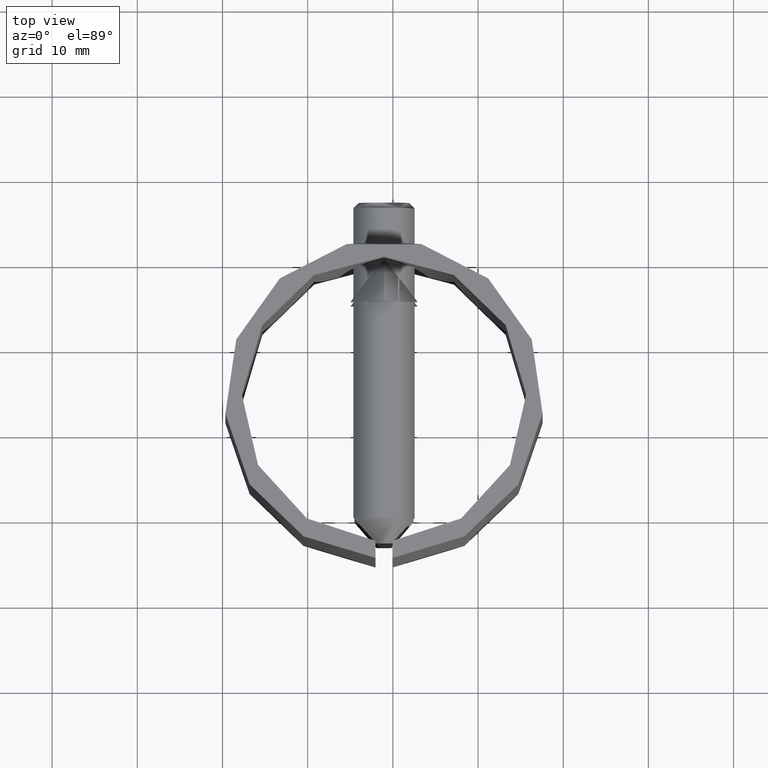
[diagram: clean part render]
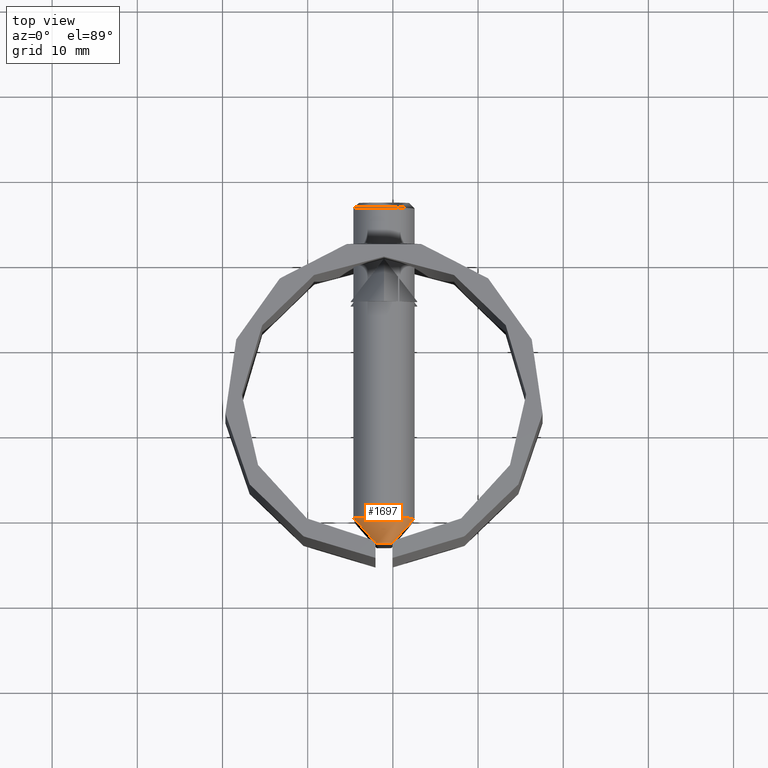
[diagram: same view with one face highlighted and labeled with its STEP entity id]
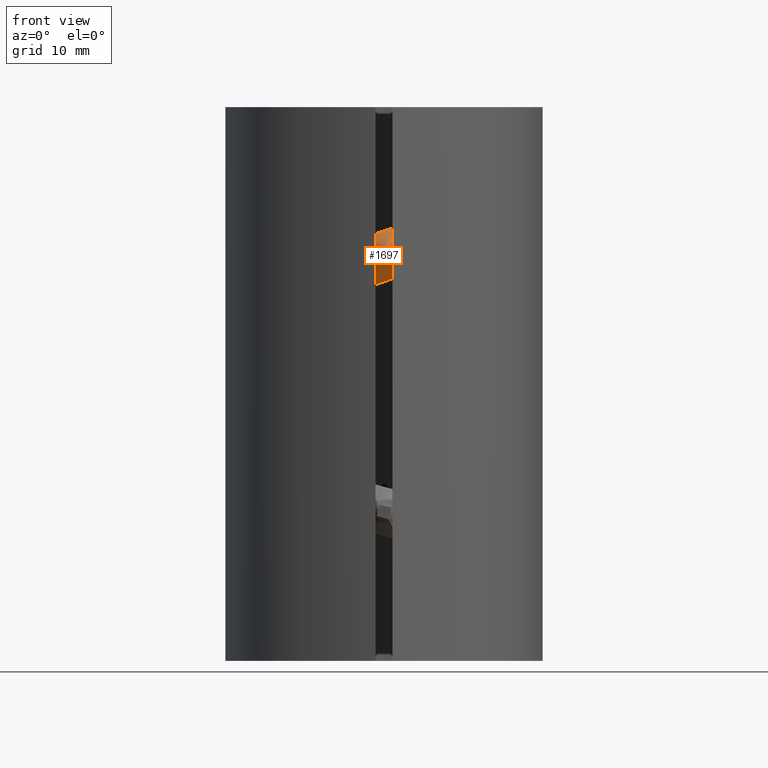
[diagram: same view with one face highlighted and labeled with its STEP entity id]
A machine part, top view. The second image highlights one B-rep face of the part: STEP entity #1697.
A second angle (front view) of the same face is appended — the face is thin or edge-on in the first view.
In plain terms, the highlighted conical surface has half-angle 45 deg.
Its self-contained STEP definition (entity closure, byte-faithful):
#657 = AXIS2_PLACEMENT_3D ( 'NONE', #11677, #13868, #828 ) ;
#828 = DIRECTION ( 'NONE',  ( 0.000000000000000000, 0.000000000000000000, -1.000000000000000000 ) ) ;
#1697 = ADVANCED_FACE ( 'NONE', ( #13142, #8137 ), #12555, .T. ) ;
#2578 = DIRECTION ( 'NONE',  ( 0.000000000000000000, 0.000000000000000000, -1.000000000000000000 ) ) ;
#3293 = DIRECTION ( 'NONE',  ( 1.000000000000000000, -0.000000000000000000, -0.000000000000000000 ) ) ;
#4221 = CIRCLE ( 'NONE', #657, 4.000000000000000000 ) ;
#5070 = EDGE_CURVE ( 'NONE', #10844, #10844, #4221, .T. ) ;
#5609 = CARTESIAN_POINT ( 'NONE',  ( 3.000000000000002665, 0.000000000000000000, 0.000000000000000000 ) ) ;
#5925 = AXIS2_PLACEMENT_3D ( 'NONE', #9558, #7175, #2578 ) ;
#6529 = EDGE_LOOP ( 'NONE', ( #7188 ) ) ;
#7175 = DIRECTION ( 'NONE',  ( -1.000000000000000000, -0.000000000000000000, -0.000000000000000000 ) ) ;
#7188 = ORIENTED_EDGE ( 'NONE', *, *, #5070, .F. ) ;
#7308 = ORIENTED_EDGE ( 'NONE', *, *, #9199, .F. ) ;
#7565 = CARTESIAN_POINT ( 'NONE',  ( 0.000000000000000000, 0.000000000000000000, -0.9999999999999897859 ) ) ;
#8070 = DIRECTION ( 'NONE',  ( 0.000000000000000000, 0.000000000000000000, -1.000000000000000000 ) ) ;
#8137 = FACE_OUTER_BOUND ( 'NONE', #6529, .T. ) ;
#9199 = EDGE_CURVE ( 'NONE', #14383, #14383, #13847, .T. ) ;
#9558 = CARTESIAN_POINT ( 'NONE',  ( 0.000000000000000000, 0.000000000000000000, 0.000000000000000000 ) ) ;
#10844 = VERTEX_POINT ( 'NONE', #12258 ) ;
#11677 = CARTESIAN_POINT ( 'NONE',  ( 3.000000000000002665, 0.000000000000000000, 0.000000000000000000 ) ) ;
#12258 = CARTESIAN_POINT ( 'NONE',  ( 3.000000000000002665, 0.000000000000000000, -4.000000000000000000 ) ) ;
#12555 = CONICAL_SURFACE ( 'NONE', #13540, 4.000000000000000000, 0.7853981633974496113 ) ;
#13142 = FACE_BOUND ( 'NONE', #14171, .T. ) ;
#13540 = AXIS2_PLACEMENT_3D ( 'NONE', #5609, #3293, #8070 ) ;
#13847 = CIRCLE ( 'NONE', #5925, 0.9999999999999897859 ) ;
#13868 = DIRECTION ( 'NONE',  ( 1.000000000000000000, -0.000000000000000000, -0.000000000000000000 ) ) ;
#14171 = EDGE_LOOP ( 'NONE', ( #7308 ) ) ;
#14383 = VERTEX_POINT ( 'NONE', #7565 ) ;